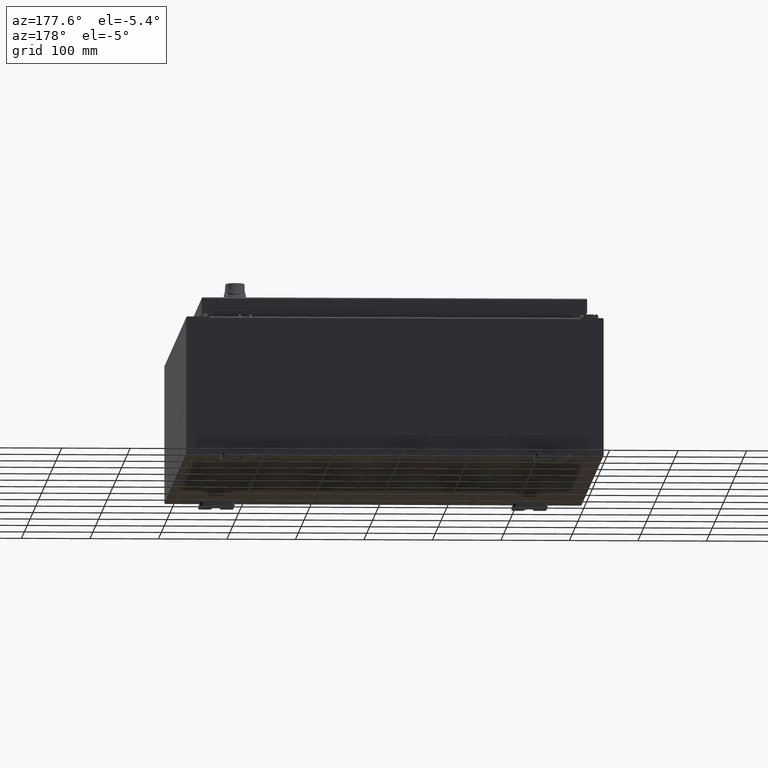
[diagram: clean part render]
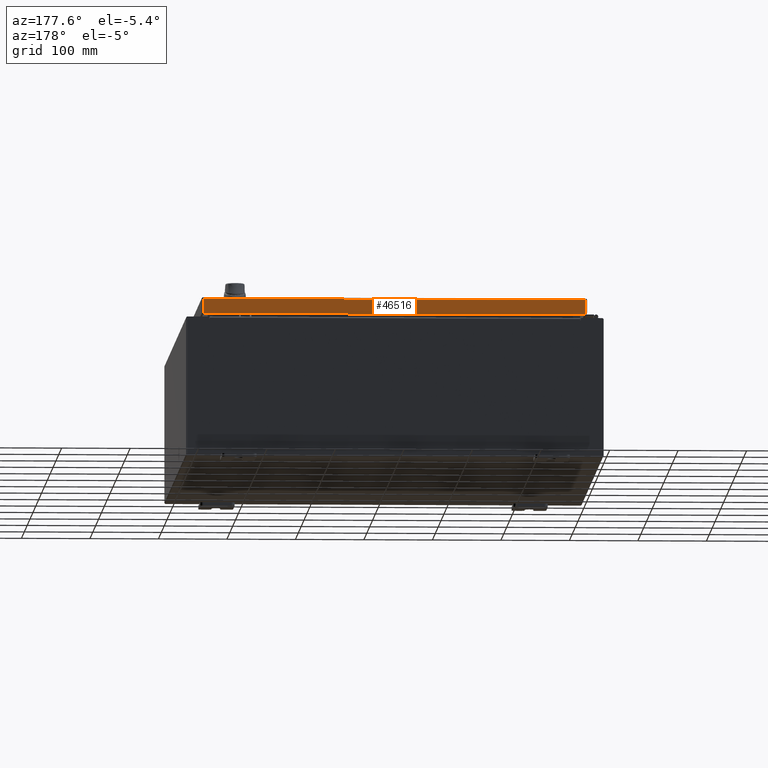
[diagram: same view with one face highlighted and labeled with its STEP entity id]
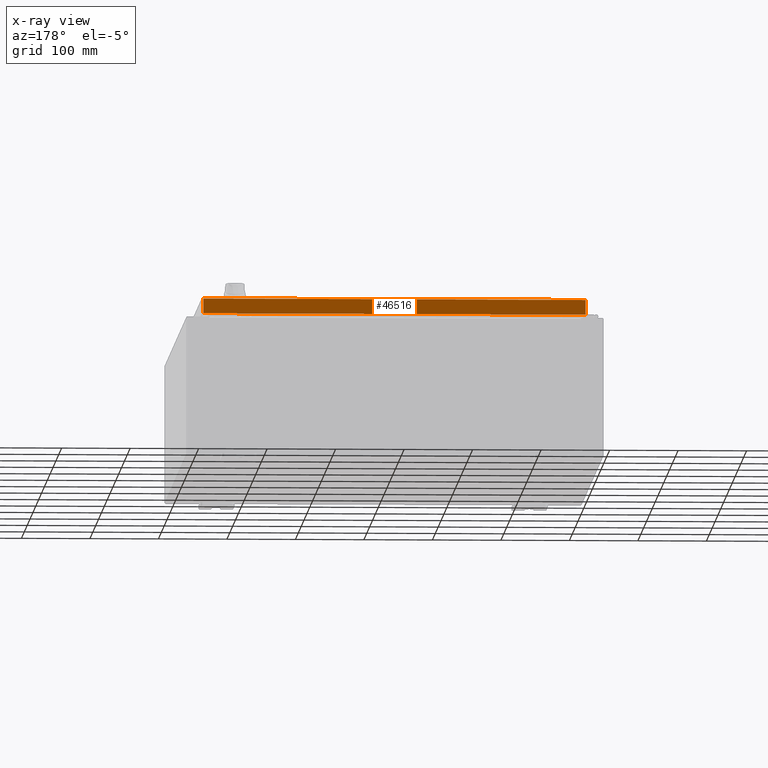
[diagram: x-ray of the same camera — body ghosted, the highlighted face saturated]
A machine part, auxiliary view. The second image highlights one B-rep face of the part: STEP entity #46516.
The next image is the same camera in x-ray: the body ghosted, the highlighted face saturated — about 0% of this face is hidden behind the body in this view.
In plain terms, the highlighted planar face has unit normal (0, -1, -0).
Its self-contained STEP definition (entity closure, byte-faithful):
#114 = ORIENTED_EDGE ( 'NONE', *, *, #78546, .F. ) ;
#10888 = VECTOR ( 'NONE', #115891, 39.37007874015748100 ) ;
#13613 = FACE_OUTER_BOUND ( 'NONE', #98715, .T. ) ;
#19006 = CARTESIAN_POINT ( 'NONE',  ( -4.400835781423494800E-030, 14.09399999999999900, 3.595274007335016100E-014 ) ) ;
#23643 = CARTESIAN_POINT ( 'NONE',  ( -11.07799999999999900, 14.09399999999999900, -0.08770000000000008300 ) ) ;
#27049 = CARTESIAN_POINT ( 'NONE',  ( 10.98915786437626700, 14.09399999999999900, -0.08770000000000008300 ) ) ;
#28152 = PLANE ( 'NONE',  #113656 ) ;
#28763 = CARTESIAN_POINT ( 'NONE',  ( 10.98915786437626700, 14.09400000000000100, -0.9376999999999997600 ) ) ;
#32709 = LINE ( 'NONE', #32737, #48218 ) ;
#32737 = CARTESIAN_POINT ( 'NONE',  ( -10.98915786437626900, 14.09399999999999900, -0.07469999999999980800 ) ) ;
#37243 = DIRECTION ( 'NONE',  ( 0.0000000000000000000, 2.532419924601858200E-015, -1.000000000000000000 ) ) ;
#41388 = DIRECTION ( 'NONE',  ( -0.0000000000000000000, 2.532419924601858200E-015, -1.000000000000000000 ) ) ;
#46516 = ADVANCED_FACE ( 'NONE', ( #13613 ), #28152, .F. ) ;
#48218 = VECTOR ( 'NONE', #41388, 39.37007874015748100 ) ;
#48600 = CARTESIAN_POINT ( 'NONE',  ( -10.98915786437626900, 14.09400000000000100, -0.9377000000000025300 ) ) ;
#60025 = DIRECTION ( 'NONE',  ( -1.000000000000000000, -3.122488847327583000E-031, -7.817847125977018100E-046 ) ) ;
#61220 = LINE ( 'NONE', #23643, #106419 ) ;
#61791 = CARTESIAN_POINT ( 'NONE',  ( 10.98915786437626900, 14.09399999999999900, 3.595274007335016100E-014 ) ) ;
#64148 = EDGE_CURVE ( 'NONE', #97981, #107709, #74591, .T. ) ;
#70120 = CARTESIAN_POINT ( 'NONE',  ( -11.07799999999999900, 14.09400000000000100, -0.9377000000000025300 ) ) ;
#72825 = EDGE_CURVE ( 'NONE', #114877, #97981, #32709, .T. ) ;
#72826 = DIRECTION ( 'NONE',  ( 3.122488847327582500E-031, -1.000000000000000000, -2.532419924601858200E-015 ) ) ;
#74591 = LINE ( 'NONE', #70120, #95791 ) ;
#78546 = EDGE_CURVE ( 'NONE', #80285, #114877, #61220, .T. ) ;
#80285 = VERTEX_POINT ( 'NONE', #27049 ) ;
#83098 = LINE ( 'NONE', #61791, #10888 ) ;
#84248 = EDGE_CURVE ( 'NONE', #80285, #107709, #83098, .T. ) ;
#88305 = DIRECTION ( 'NONE',  ( 1.000000000000000000, -4.379057701015054300E-047, 1.233005954894504400E-016 ) ) ;
#95791 = VECTOR ( 'NONE', #88305, 39.37007874015748100 ) ;
#95865 = CARTESIAN_POINT ( 'NONE',  ( -10.98915786437626700, 14.09399999999999900, -0.08770000000000008300 ) ) ;
#97981 = VERTEX_POINT ( 'NONE', #48600 ) ;
#98715 = EDGE_LOOP ( 'NONE', ( #114, #101680, #111167, #99236 ) ) ;
#99236 = ORIENTED_EDGE ( 'NONE', *, *, #72825, .F. ) ;
#101680 = ORIENTED_EDGE ( 'NONE', *, *, #84248, .T. ) ;
#106419 = VECTOR ( 'NONE', #60025, 39.37007874015748100 ) ;
#107709 = VERTEX_POINT ( 'NONE', #28763 ) ;
#111167 = ORIENTED_EDGE ( 'NONE', *, *, #64148, .F. ) ;
#113656 = AXIS2_PLACEMENT_3D ( 'NONE', #19006, #72826, #37243 ) ;
#114877 = VERTEX_POINT ( 'NONE', #95865 ) ;
#115891 = DIRECTION ( 'NONE',  ( 0.0000000000000000000, 2.532419924601858200E-015, -1.000000000000000000 ) ) ;